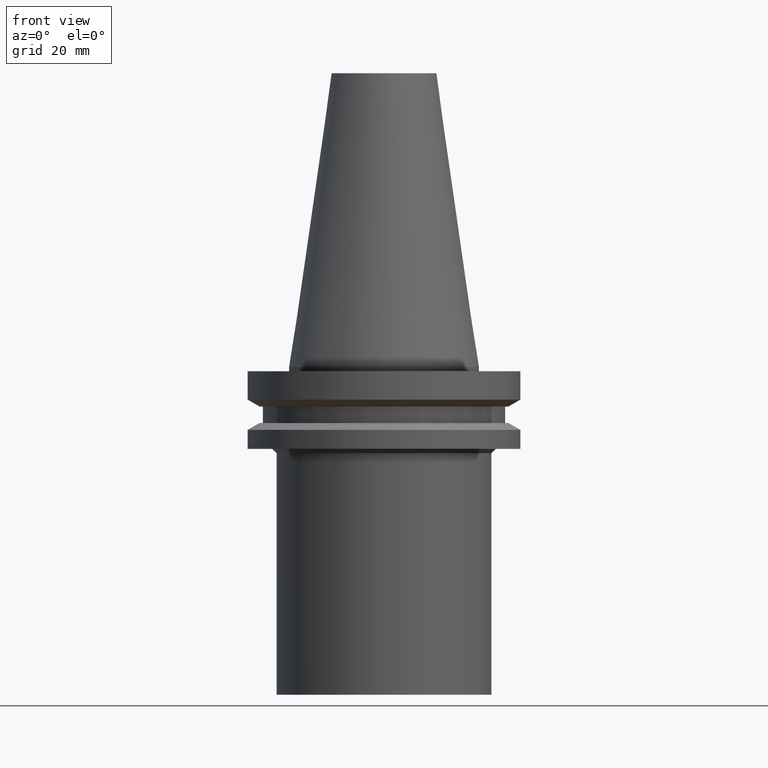
[diagram: clean part render]
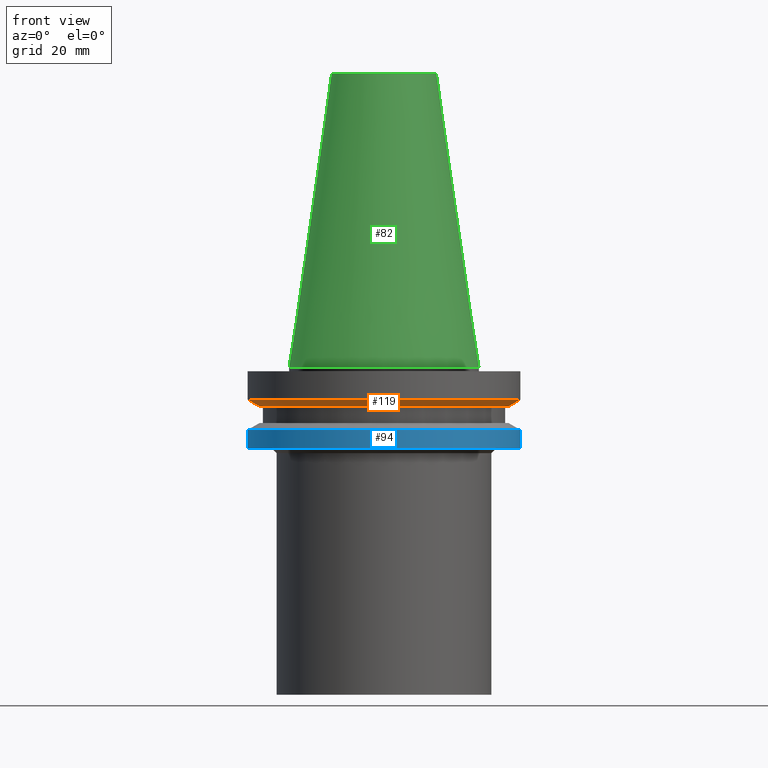
[diagram: same view with three faces highlighted in distinct colors, each labeled with its STEP entity id]
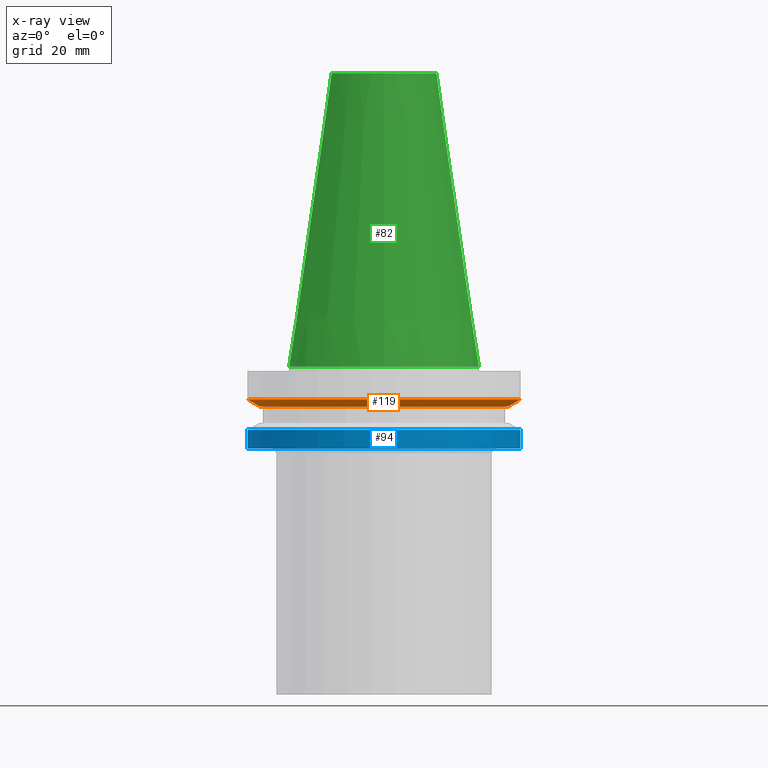
[diagram: x-ray of the same camera — body ghosted, the three highlighted faces saturated]
A machine part, front view with three faces highlighted in distinct colors.
The next image is the same camera in x-ray (body ghosted, the three faces saturated) — at least one of them is partly hidden behind the body in this view.
Their STEP definitions:

[orange] entity #119 — the highlighted conical surface has half-angle 60 deg.
#69=EDGE_CURVE('Unnamed[1]',#170,#170,#171,.T.);
#96=EDGE_CURVE('Unnamed[1]',#211,#211,#212,.T.);
#119=ADVANCED_FACE('Unnamed[1]',(#246,#247),#248,.T.);
#170=VERTEX_POINT('',#301);
#171=CIRCLE('',#302,31.7499999999999);
#211=VERTEX_POINT('',#351);
#212=CIRCLE('',#352,28.9675584538521);
#246=FACE_BOUND('',#395,.T.);
#247=FACE_BOUND('',#396,.T.);
#248=CONICAL_SURFACE('',#397,30.358779226926,1.04719755119658);
#301=CARTESIAN_POINT('',(4.64971240706304E-016,31.7499999999999,-7.59355662432687));
#302=AXIS2_PLACEMENT_3D('',#444,#445,#446);
#351=CARTESIAN_POINT('',(5.63337527607771E-016,28.9675584538521,-9.19999999999981));
#352=AXIS2_PLACEMENT_3D('',#489,#490,#491);
#395=EDGE_LOOP('',(#528));
#396=EDGE_LOOP('',(#529));
#397=AXIS2_PLACEMENT_3D('',#530,#531,#532);
#444=CARTESIAN_POINT('',(4.64971240706306E-016,1.99940624841761E-015,-7.59355662432691));
#445=DIRECTION('',(6.12323399573677E-017,8.51860445124986E-016,-1.0));
#446=DIRECTION('',(-5.69885611028992E-032,1.0,8.51860445124986E-016));
#489=CARTESIAN_POINT('',(5.63337527607772E-016,3.36787181748648E-015,-9.19999999999983));
#490=DIRECTION('',(6.12323399573677E-017,8.51860445125012E-016,-1.0));
#491=DIRECTION('',(-5.69885611028974E-032,1.0,8.51860445125012E-016));
#528=ORIENTED_EDGE('',*,*,#96,.F.);
#529=ORIENTED_EDGE('',*,*,#69,.T.);
#530=CARTESIAN_POINT('',(5.1415438415704E-016,2.68363903295205E-015,-8.39677831216338));
#531=DIRECTION('',(-6.12323399573677E-017,-8.51860445125025E-016,1.0));
#532=DIRECTION('',(-5.69885611028983E-032,1.0,8.51860445125025E-016));

[blue] entity #94 — the highlighted cylindrical surface (bore or boss wall) has radius 31.75 mm, axis along (0, 0, -1).
#56=EDGE_CURVE('Unnamed[1]',#149,#149,#150,.T.);
#94=ADVANCED_FACE('Unnamed[1]',(#207,#208),#209,.T.);
#116=EDGE_CURVE('Unnamed[1]',#242,#242,#243,.T.);
#149=VERTEX_POINT('',#275);
#150=CIRCLE('',#276,31.7499999999999);
#207=FACE_BOUND('',#346,.T.);
#208=FACE_BOUND('',#347,.T.);
#209=CYLINDRICAL_SURFACE('',#348,31.7499999999999);
#242=VERTEX_POINT('',#390);
#243=CIRCLE('',#391,31.7499999999999);
#275=CARTESIAN_POINT('',(1.16647607618784E-015,31.7499999999999,-19.0499999999998));
#276=AXIS2_PLACEMENT_3D('',#420,#421,#422);
#346=EDGE_LOOP('',(#484));
#347=EDGE_LOOP('',(#485));
#348=AXIS2_PLACEMENT_3D('',#486,#487,#488);
#390=CARTESIAN_POINT('',(8.96835999945531E-016,31.7499999999999,-14.6464433756728));
#391=AXIS2_PLACEMENT_3D('',#524,#525,#526);
#420=CARTESIAN_POINT('',(1.16647607618785E-015,1.17586972019679E-014,-19.0499999999999));
#421=DIRECTION('',(6.12323399573677E-017,8.51860445124987E-016,-1.0));
#422=DIRECTION('',(-5.69885611028992E-032,1.0,8.51860445124987E-016));
#484=ORIENTED_EDGE('',*,*,#56,.F.);
#485=ORIENTED_EDGE('',*,*,#116,.T.);
#486=CARTESIAN_POINT('',(1.03165603806669E-015,9.88308934890168E-015,-16.8482216878363));
#487=DIRECTION('',(6.12323399573677E-017,8.51860445124987E-016,-1.0));
#488=DIRECTION('',(-5.69885611028992E-032,1.0,8.51860445124986E-016));
#524=CARTESIAN_POINT('',(8.96835999945533E-016,8.00748149583545E-015,-14.6464433756728));
#525=DIRECTION('',(6.12323399573677E-017,8.51860445124987E-016,-1.0));
#526=DIRECTION('',(-5.69885611028992E-032,1.0,8.51860445124986E-016));

[green] entity #82 — the highlighted conical surface has half-angle 8.297 deg.
#58=EDGE_CURVE('Unnamed[1]',#152,#152,#153,.T.);
#82=ADVANCED_FACE('Unnamed[1]',(#189,#190),#191,.T.);
#101=EDGE_CURVE('Unnamed[1]',#219,#219,#220,.T.);
#152=VERTEX_POINT('',#279);
#153=CIRCLE('',#280,22.225);
#189=FACE_BOUND('',#325,.T.);
#190=FACE_BOUND('',#326,.T.);
#191=CONICAL_SURFACE('',#327,17.2484375,0.144812498238938);
#219=VERTEX_POINT('',#361);
#220=CIRCLE('',#362,12.271875);
#279=CARTESIAN_POINT('',(-7.23525537133772E-030,22.225,1.16408615232721E-013));
#280=AXIS2_PLACEMENT_3D('',#423,#424,#425);
#325=EDGE_LOOP('',(#465));
#326=EDGE_LOOP('',(#466));
#327=AXIS2_PLACEMENT_3D('',#467,#468,#469);
#361=CARTESIAN_POINT('',(-4.17910720209035E-015,12.271875,68.2500000000002));
#362=AXIS2_PLACEMENT_3D('',#498,#499,#500);
#423=CARTESIAN_POINT('',(-6.09114720904207E-030,-4.4692442776636E-015,9.9475983006414E-014));
#424=DIRECTION('',(6.12323399573677E-017,8.51860445125044E-016,-1.0));
#425=DIRECTION('',(-5.69885611028967E-032,1.0,8.51860445125044E-016));
#465=ORIENTED_EDGE('',*,*,#58,.F.);
#466=ORIENTED_EDGE('',*,*,#101,.T.);
#467=CARTESIAN_POINT('',(-2.08955360104518E-015,-3.35389819675548E-014,34.1250000000001));
#468=DIRECTION('',(6.12323399573677E-017,8.51860445125001E-016,-1.0));
#469=DIRECTION('',(-5.69885611028945E-032,1.0,8.51860445125001E-016));
#498=CARTESIAN_POINT('',(-4.17910720209035E-015,-6.2608719657446E-014,68.2500000000002));
#499=DIRECTION('',(6.12323399573677E-017,8.5186044512499E-016,-1.0));
#500=DIRECTION('',(-5.6988561102894E-032,1.0,8.5186044512499E-016));